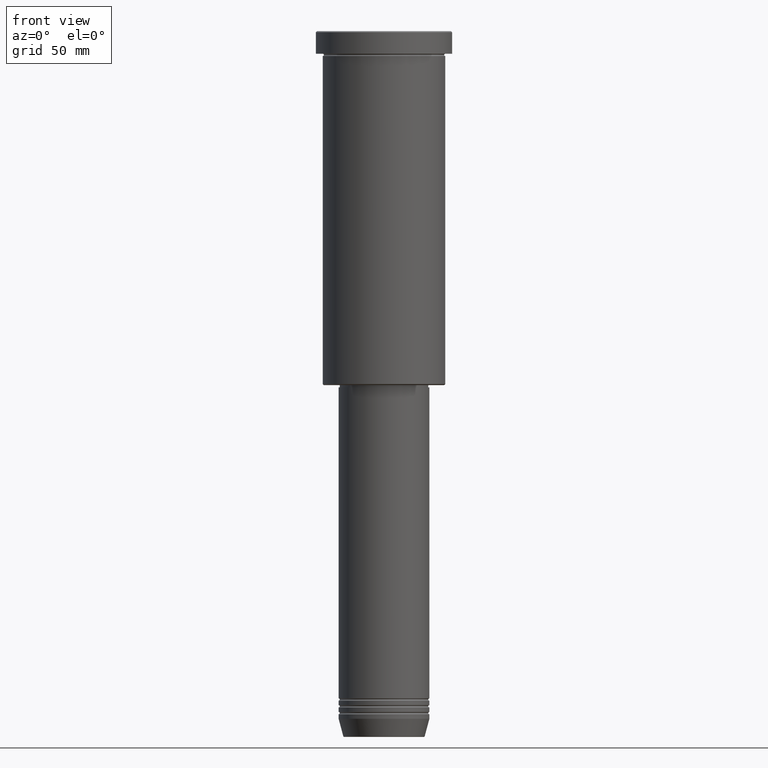
[diagram: clean part render]
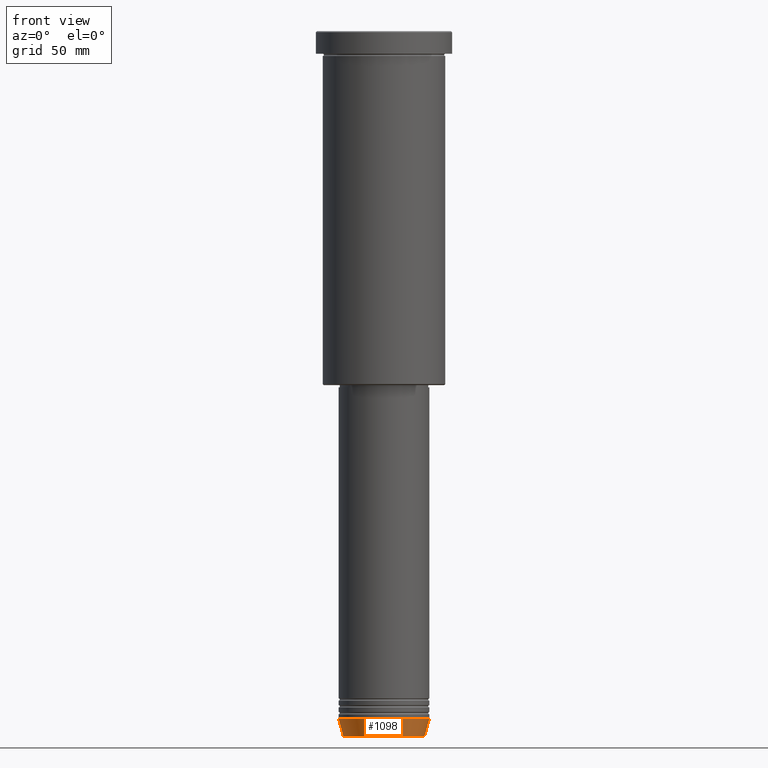
[diagram: same view with one face highlighted and labeled with its STEP entity id]
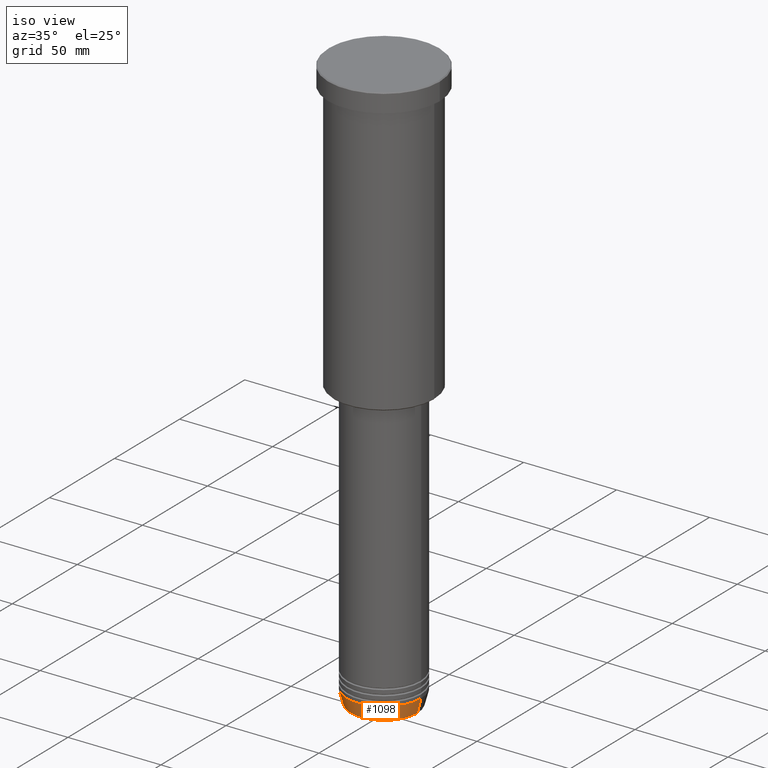
[diagram: same view with one face highlighted and labeled with its STEP entity id]
A machine part, front view. The second image highlights one B-rep face of the part: STEP entity #1098.
A second angle (iso view) of the same face is appended — the face is thin or edge-on in the first view.
In plain terms, the highlighted conical surface has half-angle 15 deg.
Its self-contained STEP definition (entity closure, byte-faithful):
#7 = DIRECTION ( 'NONE',  ( 1.000000000000000000, 0.000000000000000000, 0.000000000000000000 ) ) ;
#50 = EDGE_CURVE ( 'NONE', #320, #614, #70, .T. ) ;
#70 = CIRCLE ( 'NONE', #300, 20.00000000000000000 ) ;
#87 = DIRECTION ( 'NONE',  ( 1.000000000000000000, 0.000000000000000000, 0.000000000000000000 ) ) ;
#104 = LINE ( 'NONE', #186, #1034 ) ;
#140 = CARTESIAN_POINT ( 'NONE',  ( 17.95570587970606269, 0.000000000000000000, -310.6294095225512706 ) ) ;
#155 = CARTESIAN_POINT ( 'NONE',  ( -20.00000000000000000, 2.449293598294706513E-15, -303.0000000000000000 ) ) ;
#186 = CARTESIAN_POINT ( 'NONE',  ( 20.00000000000000000, 0.000000000000000000, -303.0000000000000000 ) ) ;
#217 = VERTEX_POINT ( 'NONE', #140 ) ;
#229 = CARTESIAN_POINT ( 'NONE',  ( 20.00000000000000000, 0.000000000000000000, -303.0000000000000000 ) ) ;
#271 = DIRECTION ( 'NONE',  ( 0.2588190451025212391, 0.000000000000000000, 0.9659258262890680902 ) ) ;
#277 = DIRECTION ( 'NONE',  ( -0.000000000000000000, -0.000000000000000000, 1.000000000000000000 ) ) ;
#285 = VECTOR ( 'NONE', #723, 1000.000000000000114 ) ;
#300 = AXIS2_PLACEMENT_3D ( 'NONE', #817, #277, #377 ) ;
#320 = VERTEX_POINT ( 'NONE', #155 ) ;
#377 = DIRECTION ( 'NONE',  ( 1.000000000000000000, 0.000000000000000000, 0.000000000000000000 ) ) ;
#450 = EDGE_CURVE ( 'NONE', #657, #320, #1018, .T. ) ;
#458 = CARTESIAN_POINT ( 'NONE',  ( 0.000000000000000000, 0.000000000000000000, -310.6294095225512706 ) ) ;
#481 = CONICAL_SURFACE ( 'NONE', #1151, 20.00000000000000000, 0.2617993877991499629 ) ;
#484 = CARTESIAN_POINT ( 'NONE',  ( 0.000000000000000000, 0.000000000000000000, -303.0000000000000000 ) ) ;
#501 = ORIENTED_EDGE ( 'NONE', *, *, #50, .F. ) ;
#558 = FACE_OUTER_BOUND ( 'NONE', #1057, .T. ) ;
#614 = VERTEX_POINT ( 'NONE', #229 ) ;
#649 = AXIS2_PLACEMENT_3D ( 'NONE', #458, #828, #7 ) ;
#657 = VERTEX_POINT ( 'NONE', #937 ) ;
#709 = ORIENTED_EDGE ( 'NONE', *, *, #1100, .T. ) ;
#717 = ORIENTED_EDGE ( 'NONE', *, *, #450, .F. ) ;
#723 = DIRECTION ( 'NONE',  ( -0.2588190451025212391, 3.169619151431771721E-17, 0.9659258262890680902 ) ) ;
#783 = ORIENTED_EDGE ( 'NONE', *, *, #1006, .T. ) ;
#817 = CARTESIAN_POINT ( 'NONE',  ( 0.000000000000000000, 0.000000000000000000, -303.0000000000000000 ) ) ;
#828 = DIRECTION ( 'NONE',  ( -0.000000000000000000, -0.000000000000000000, 1.000000000000000000 ) ) ;
#904 = DIRECTION ( 'NONE',  ( -0.000000000000000000, -0.000000000000000000, 1.000000000000000000 ) ) ;
#919 = CARTESIAN_POINT ( 'NONE',  ( -20.00000000000000000, 2.449293598294706513E-15, -303.0000000000000000 ) ) ;
#937 = CARTESIAN_POINT ( 'NONE',  ( -17.95570587970606269, 2.324116685748020582E-15, -310.6294095225512706 ) ) ;
#1006 = EDGE_CURVE ( 'NONE', #657, #217, #1165, .T. ) ;
#1018 = LINE ( 'NONE', #919, #285 ) ;
#1034 = VECTOR ( 'NONE', #271, 1000.000000000000114 ) ;
#1057 = EDGE_LOOP ( 'NONE', ( #717, #783, #709, #501 ) ) ;
#1098 = ADVANCED_FACE ( 'NONE', ( #558 ), #481, .T. ) ;
#1100 = EDGE_CURVE ( 'NONE', #217, #614, #104, .T. ) ;
#1151 = AXIS2_PLACEMENT_3D ( 'NONE', #484, #904, #87 ) ;
#1165 = CIRCLE ( 'NONE', #649, 17.95570587970606269 ) ;